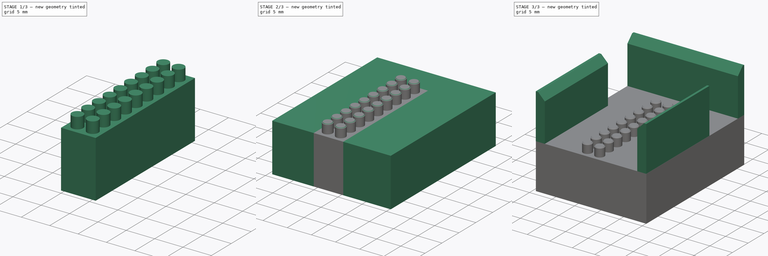
[diagram: build sequence overview — one tinted view per stage of 3, left to right]
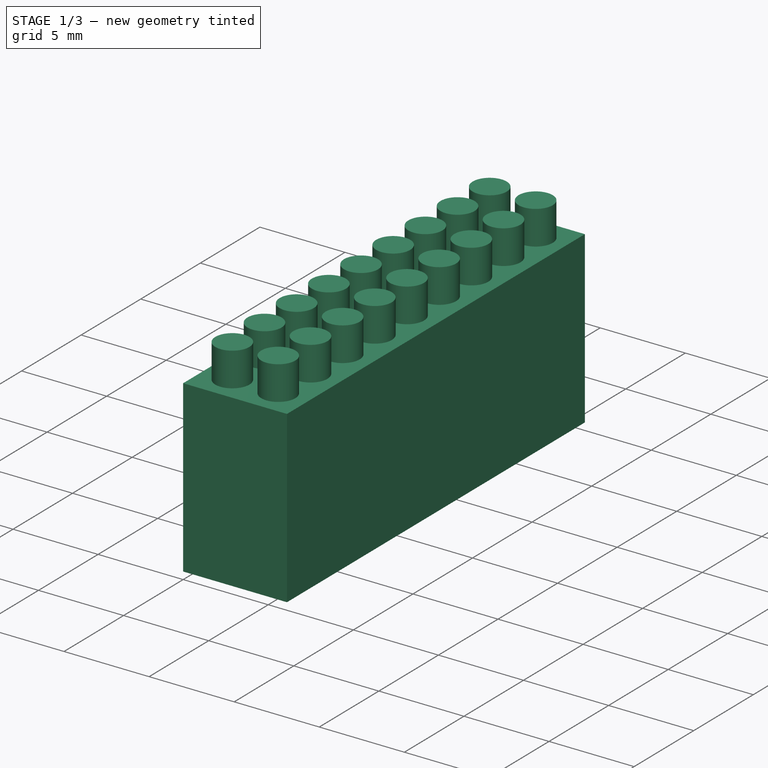
[diagram: stage 1 of 3 — iso view after this stage's code; geometry added in this stage tinted green]
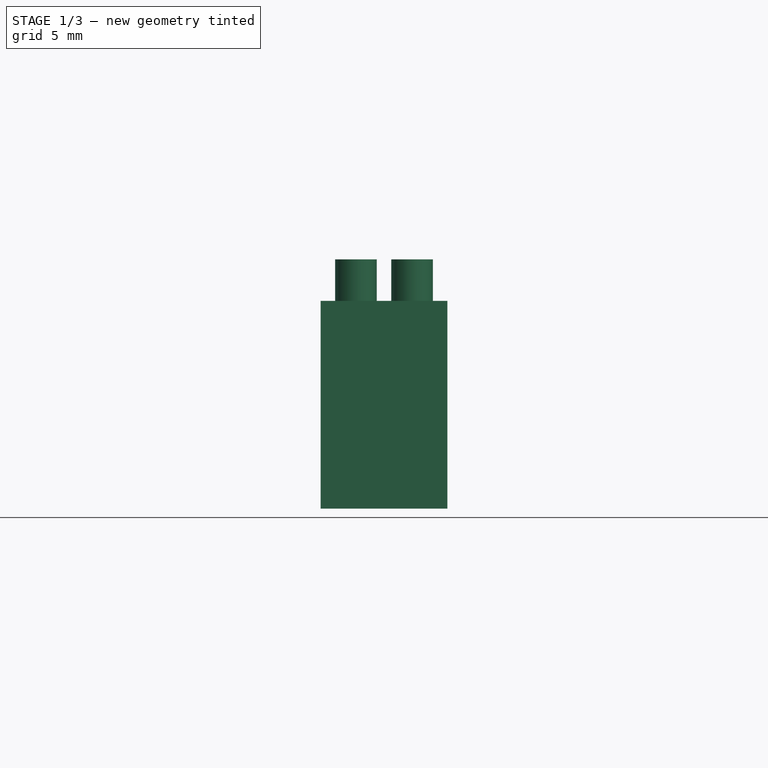
[diagram: stage 1 of 3 — front view after this stage's code; geometry added in this stage tinted green]
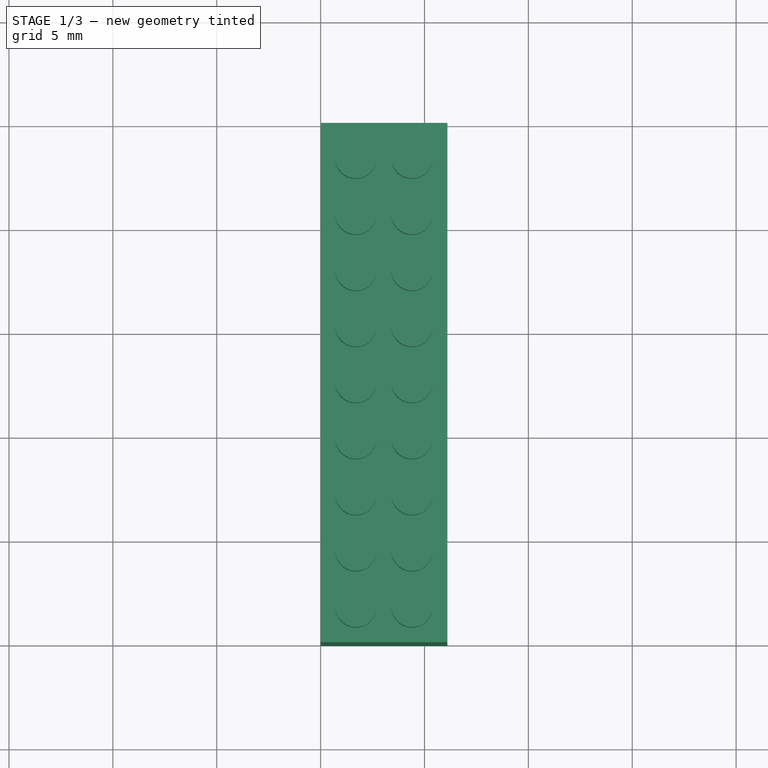
[diagram: stage 1 of 3 — top view after this stage's code; geometry added in this stage tinted green]
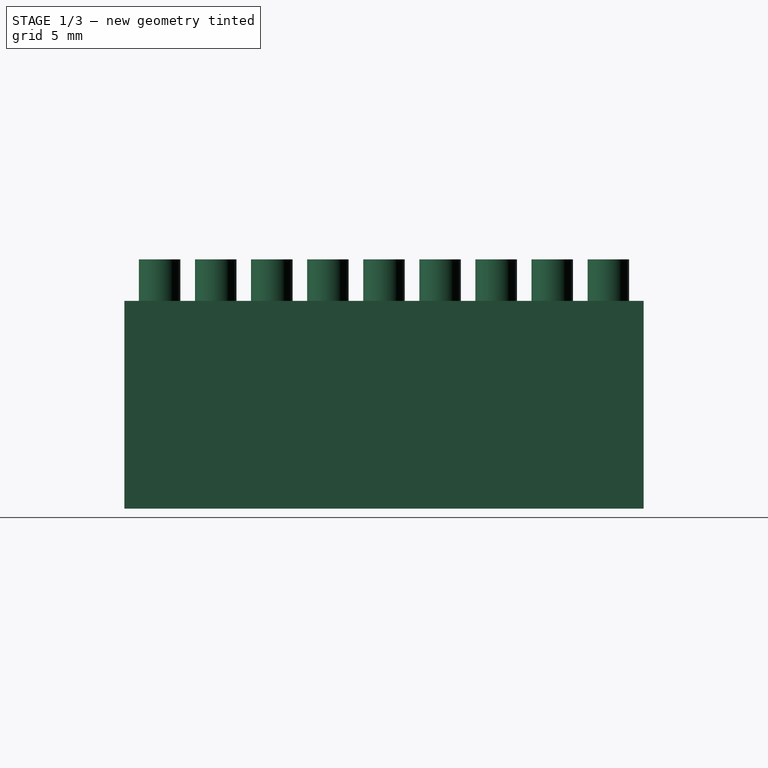
[diagram: stage 1 of 3 — right view after this stage's code; geometry added in this stage tinted green]
FCSTD DOCUMENT  (FreeCAD 0.18R16131 (Git))
Label: Stempel rote spots 2
License: All rights reserved
LicenseURL: http://en.wikipedia.org/wiki/All_rights_reserved
objects: Sketcher::SketchObject×4, PartDesign::Pad×4, PartDesign::Chamfer×2, PartDesign::Body×1
note: 15 computed .brp shape members not serialized (recipe doc carries the construction recipe); baked Part::Feature solids carry a one-line shape summary decoded from their .brp

FEATURE [Sketcher::SketchObject] Sketch
  MapMode = 5
  Support = -> [XY_Plane]
  sketch-geometry (4):
    g0: LineSegment StartX=6.1 StartY=25 StartZ=0 EndX=0 EndY=25 EndZ=0
    g1: LineSegment StartX=0 StartY=25 StartZ=0 EndX=0 EndY=0 EndZ=0
    g2: LineSegment StartX=0 StartY=0 StartZ=0 EndX=6.1 EndY=0 EndZ=0
    g3: LineSegment StartX=6.1 StartY=0 StartZ=0 EndX=6.1 EndY=25 EndZ=0
  constraints (11):
    c: Coincident(g0,g1)
    c: Coincident(g1,g2)
    c: Coincident(g2,g3)
    c: Coincident(g3,g0)
    c: Horizontal(g0)
    c: Horizontal(g2)
    c: Vertical(g1)
    c: Vertical(g3)
    c: Coincident(g1,g-1)
    c: Distance(g3) = 25
    c: Distance(g0) = 6.1
FEATURE [PartDesign::Pad] Pad
  Length = 10
  Length2 = 100
  Profile = -> Sketch
  Type = 0
FEATURE [Sketcher::SketchObject] Sketch001
  MapMode = 5
  Placement = pos=(0,0,10) rot=(0,0,1;0rad)
  Support = -> [Pad]
  sketch-geometry (18):
    g0: Circle CenterX=1.7 CenterY=23.3 CenterZ=0 NormalX=0 NormalY=0 NormalZ=1 AngleXU=0 Radius=1
    g1: Circle CenterX=1.7 CenterY=20.6 CenterZ=0 NormalX=0 NormalY=0 NormalZ=1 AngleXU=0 Radius=1
    g2: Circle CenterX=1.7 CenterY=17.9 CenterZ=0 NormalX=0 NormalY=0 NormalZ=1 AngleXU=0 Radius=1
    g3: Circle CenterX=1.7 CenterY=15.2 CenterZ=0 NormalX=0 NormalY=0 NormalZ=1 AngleXU=0 Radius=1
    g4: Circle CenterX=1.7 CenterY=12.5 CenterZ=0 NormalX=0 NormalY=0 NormalZ=1 AngleXU=0 Radius=1
    g5: Circle CenterX=1.7 CenterY=9.8 CenterZ=0 NormalX=0 NormalY=0 NormalZ=1 AngleXU=0 Radius=1
    g6: Circle CenterX=1.7 CenterY=7.1 CenterZ=0 NormalX=0 NormalY=0 NormalZ=1 AngleXU=0 Radius=1
    g7: Circle CenterX=1.7 CenterY=4.4 CenterZ=0 NormalX=0 NormalY=0 NormalZ=1 AngleXU=0 Radius=1
    g8: Circle CenterX=1.7 CenterY=1.7 CenterZ=0 NormalX=0 NormalY=0 NormalZ=1 AngleXU=0 Radius=1
    g9: Circle CenterX=4.4 CenterY=23.3 CenterZ=0 NormalX=0 NormalY=0 NormalZ=1 AngleXU=0 Radius=1
    g10: Circle CenterX=4.4 CenterY=20.6 CenterZ=0 NormalX=0 NormalY=0 NormalZ=1 AngleXU=0 Radius=1
    g11: Circle CenterX=4.4 CenterY=17.9 CenterZ=0 NormalX=0 NormalY=0 NormalZ=1 AngleXU=0 Radius=1
    g12: Circle CenterX=4.4 CenterY=15.2 CenterZ=0 NormalX=0 NormalY=0 NormalZ=1 AngleXU=0 Radius=1
    g13: Circle CenterX=4.4 CenterY=12.5 CenterZ=0 NormalX=0 NormalY=0 NormalZ=1 AngleXU=0 Radius=1
    g14: Circle CenterX=4.4 CenterY=9.8 CenterZ=0 NormalX=0 NormalY=0 NormalZ=1 AngleXU=0 Radius=1
    g15: Circle CenterX=4.4 CenterY=7.1 CenterZ=0 NormalX=0 NormalY=0 NormalZ=1 AngleXU=0 Radius=1
    g16: Circle CenterX=4.4 CenterY=4.4 CenterZ=0 NormalX=0 NormalY=0 NormalZ=1 AngleXU=0 Radius=1
    g17: Circle CenterX=4.4 CenterY=1.7 CenterZ=0 NormalX=0 NormalY=0 NormalZ=1 AngleXU=0 Radius=1
  constraints (54):
    c: Equal(g8,g7)
    c: Equal(g7,g6)
    c: Equal(g6,g5)
    c: Equal(g5,g4)
    c: Equal(g4,g3)
    c: Equal(g3,g2)
    c: Equal(g2,g1)
    c: Equal(g1,g0)
    c: Radius(g0) = 1
    c: Distance(g2,g1) = 2.7
    c: Distance(g0,g1) = 2.7
    c: Distance(g3,g2) = 2.7
    c: Distance(g3,g4) = 2.7
    c: Distance(g4,g5) = 2.7
    c: Distance(g5,g6) = 2.7
    c: Distance(g7,g6) = 2.7
    c: Distance(g8,g7) = 2.7
    c: DistanceY(g-1,g8) = 1.7
    c: DistanceX(g-2,g8) = 1.7
    c: DistanceX(g-2,g7) = 1.7
    c: DistanceX(g-2,g6) = 1.7
    c: DistanceX(g-2,g5) = 1.7
    c: DistanceX(g-2,g4) = 1.7
    c: DistanceX(g-2,g3) = 1.7
    c: DistanceX(g-2,g2) = 1.7
    c: DistanceX(g-2,g1) = 1.7
    c: DistanceX(g-2,g0) = 1.7
    c: Equal(g17,g16)
    c: Equal(g16,g15)
    c: Equal(g15,g14)
    c: Equal(g14,g13)
    c: Equal(g13,g12)
    c: Equal(g12,g11)
    c: Equal(g11,g10)
    c: Equal(g10,g9)
    c: Equal(g0,g9) = 1
    c: Distance(g11,g10) = 2.7
    c: Distance(g9,g10) = 2.7
    c: Distance(g12,g11) = 2.7
    c: Distance(g12,g13) = 2.7
    c: Distance(g13,g14) = 2.7
    c: Distance(g14,g15) = 2.7
    c: Distance(g16,g15) = 2.7
    c: Distance(g17,g16) = 2.7
    c: Distance(g17,g8) = 2.7
    c: Distance(g16,g7) = 2.7
    c: Distance(g15,g6) = 2.7
    c: Distance(g14,g5) = 2.7
    c: Distance(g13,g4) = 2.7
    c: Distance(g12,g3) = 2.7
    c: Distance(g11,g2) = 2.7
    c: Distance(g1,g10) = 2.7
    c: Distance(g9,g0) = 2.7
    c: DistanceY(g-1,g17) = 1.7
FEATURE [PartDesign::Pad] Pad001
  BaseFeature = -> Pad
  Length = 2
  Length2 = 100
  Profile = -> Sketch001
  Type = 0
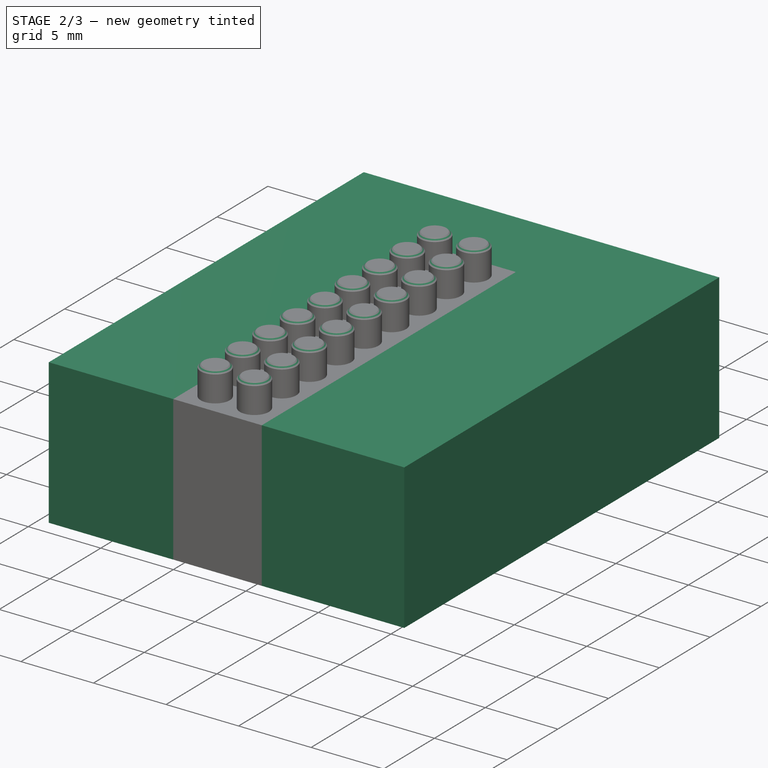
[diagram: stage 2 of 3 — iso view after this stage's code; geometry added in this stage tinted green]
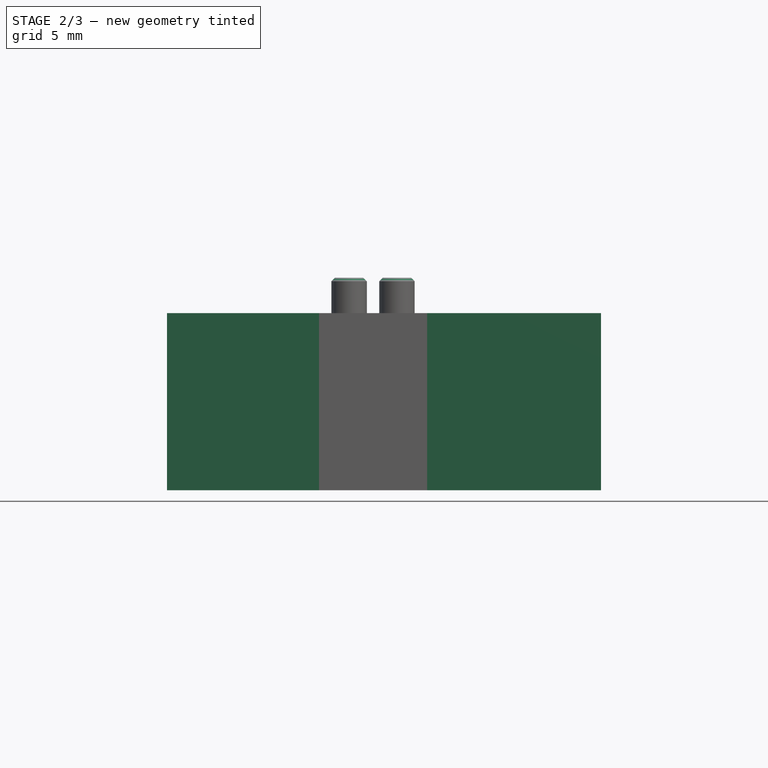
[diagram: stage 2 of 3 — front view after this stage's code; geometry added in this stage tinted green]
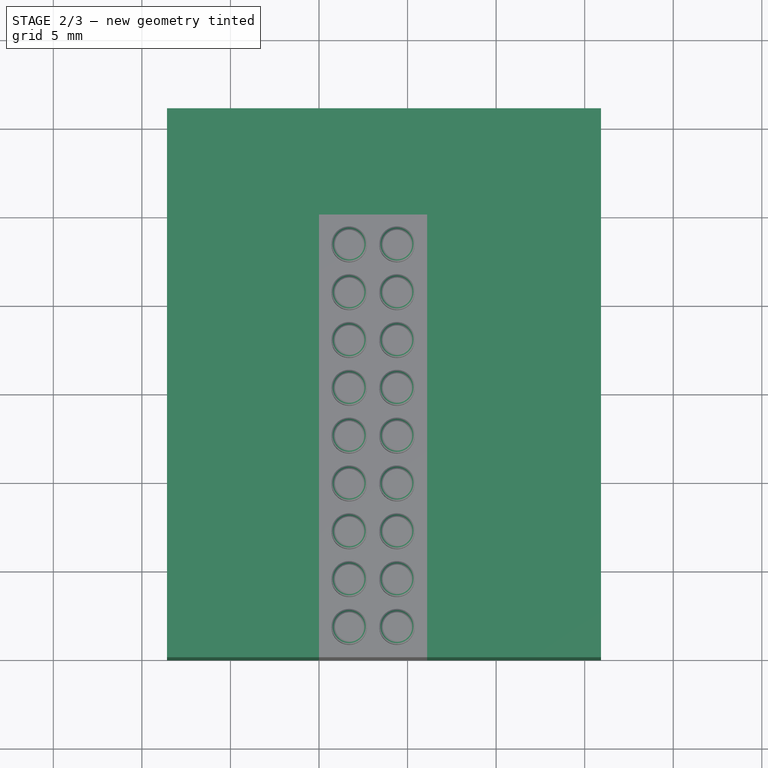
[diagram: stage 2 of 3 — top view after this stage's code; geometry added in this stage tinted green]
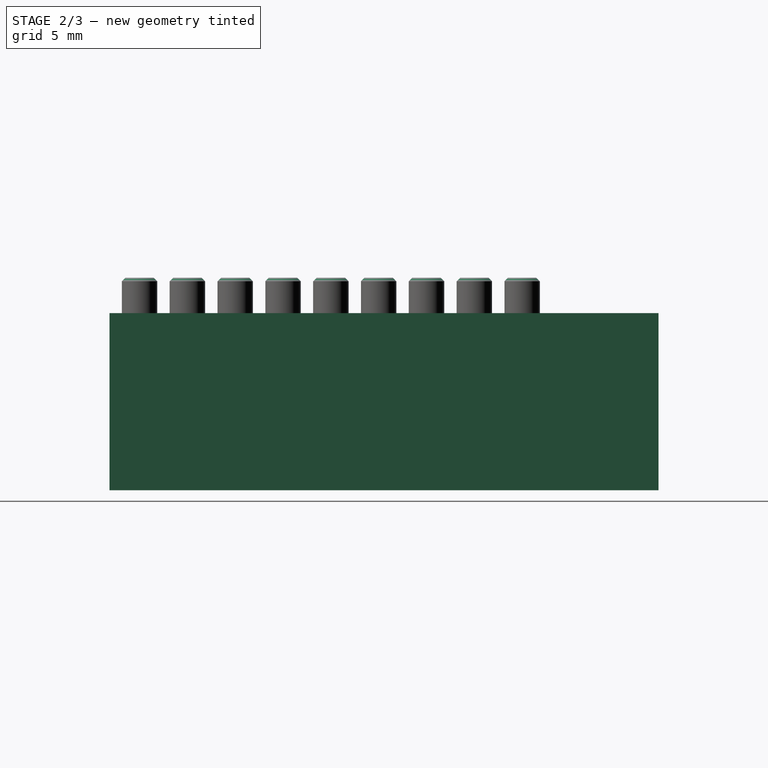
[diagram: stage 2 of 3 — right view after this stage's code; geometry added in this stage tinted green]
FEATURE [PartDesign::Chamfer] Chamfer
  Base = -> Pad001 [Face32,Face27,Face28,Face29,Face30,Face26,Face25,Face31,Face34,Face33,Face42,Face41,Face37,Face38,Face39,Face36,Face35,Face40]
  BaseFeature = -> Pad001
  Size = 0.2
FEATURE [Sketcher::SketchObject] Sketch002
  MapMode = 5
  Placement = pos=(0,0,10) rot=(0,0,1;0rad)
  Support = -> [Chamfer]
  sketch-geometry (8):
    g0: LineSegment StartX=0 StartY=25 StartZ=0 EndX=0 EndY=0 EndZ=0
    g1: LineSegment StartX=0 StartY=0 StartZ=0 EndX=-8.58146 EndY=0 EndZ=0
    g2: LineSegment StartX=-8.58146 StartY=0 StartZ=0 EndX=-8.58146 EndY=31 EndZ=0
    g3: LineSegment StartX=6.1 StartY=0 StartZ=0 EndX=15.9185 EndY=0 EndZ=0
    g4: LineSegment StartX=15.9185 StartY=0 StartZ=0 EndX=15.9185 EndY=31 EndZ=0
    g5: LineSegment StartX=6.1 StartY=25 StartZ=0 EndX=6.1 EndY=0 EndZ=0
    g6: LineSegment StartX=-8.58146 StartY=31 StartZ=0 EndX=15.9185 EndY=31 EndZ=0
    g7: LineSegment StartX=0 StartY=25 StartZ=0 EndX=6.1 EndY=25 EndZ=0
  constraints (22):
    c: Coincident(g0,g1)
    c: Coincident(g1,g2)
    c: Horizontal(g1)
    c: Vertical(g0)
    c: Vertical(g2)
    c: Coincident(g3,g4)
    c: Coincident(g5,g3)
    c: Horizontal(g3)
    c: Vertical(g4)
    c: Vertical(g5)
    c: Equal(g0,g5)
    c: Equal(g4,g2)
    c: Coincident(g6,g4)
    c: Coincident(g6,g2)
    c: Horizontal(g6)
    c: Coincident(g7,g5)
    c: Coincident(g7,g0)
    c: Distance(g7) = 6.1
    c: Distance(g0) = 25
    c: Coincident(g0,g-1)
    c: Distance(g6) = 24.5
    c: Distance(g4) = 31
FEATURE [PartDesign::Pad] Pad002
  BaseFeature = -> Chamfer
  Length = 10
  Length2 = 100
  Profile = -> Sketch002
  Reversed = true
  Type = 0
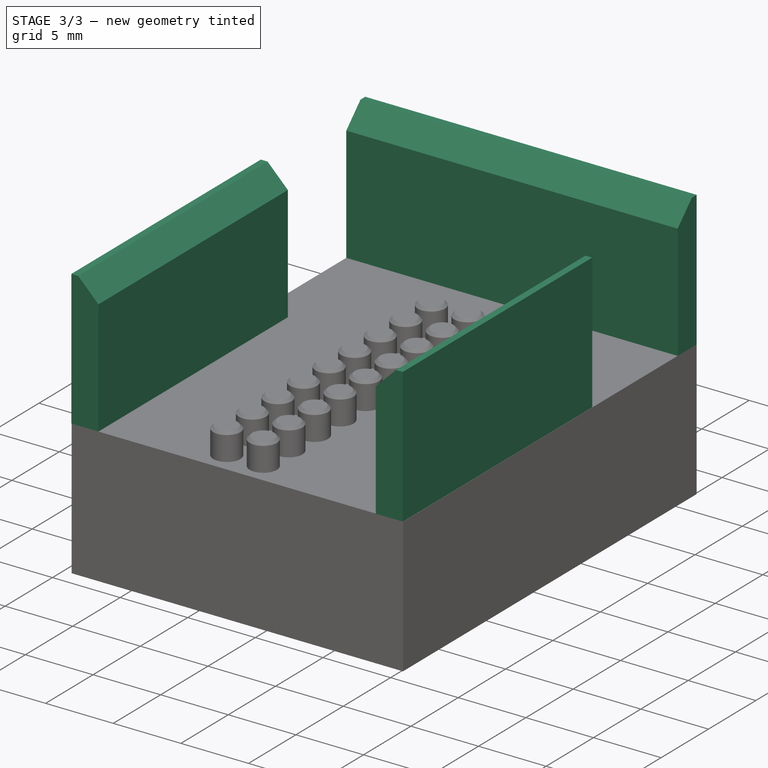
[diagram: stage 3 of 3 — iso view after this stage's code; geometry added in this stage tinted green]
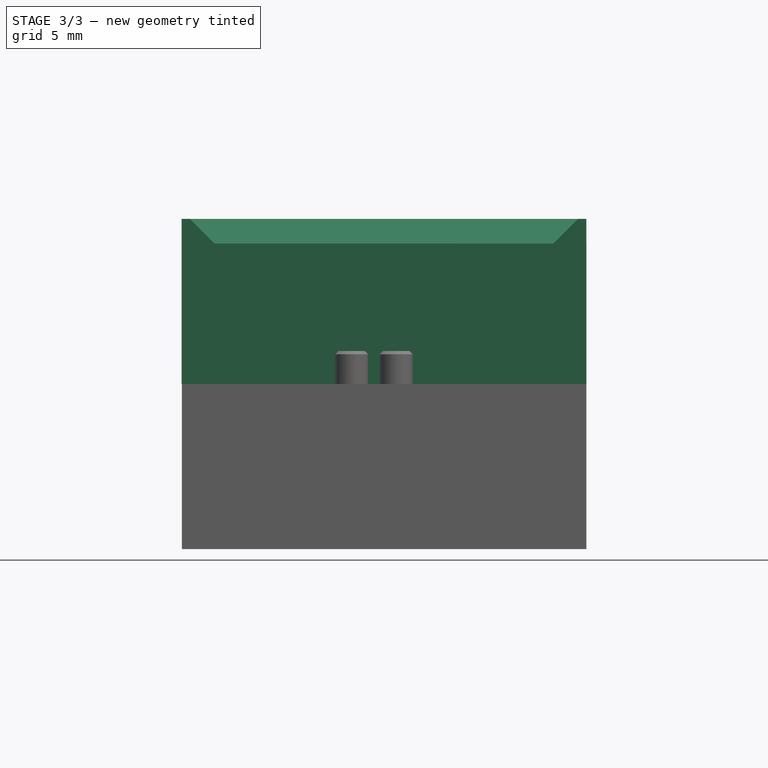
[diagram: stage 3 of 3 — front view after this stage's code; geometry added in this stage tinted green]
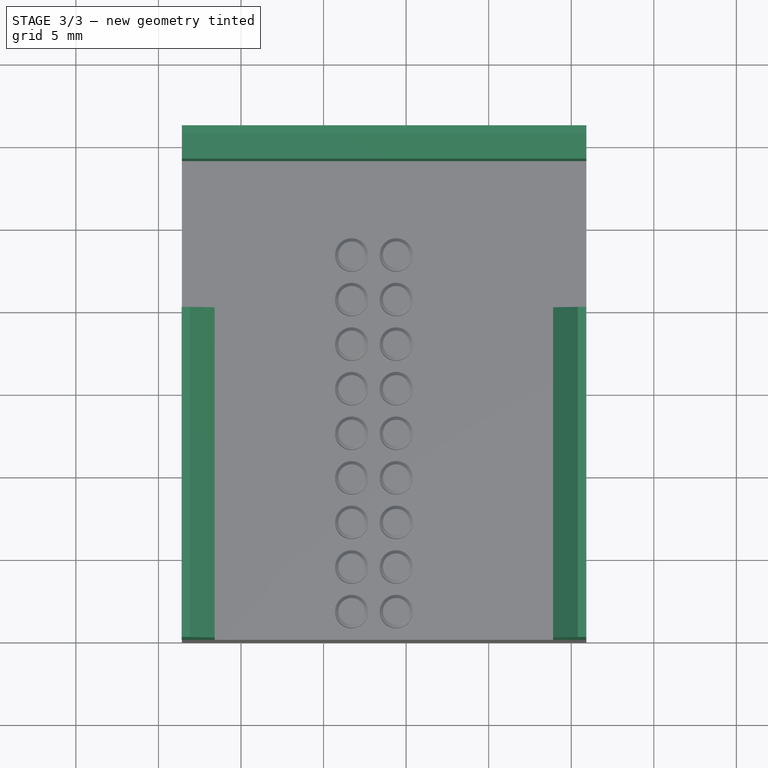
[diagram: stage 3 of 3 — top view after this stage's code; geometry added in this stage tinted green]
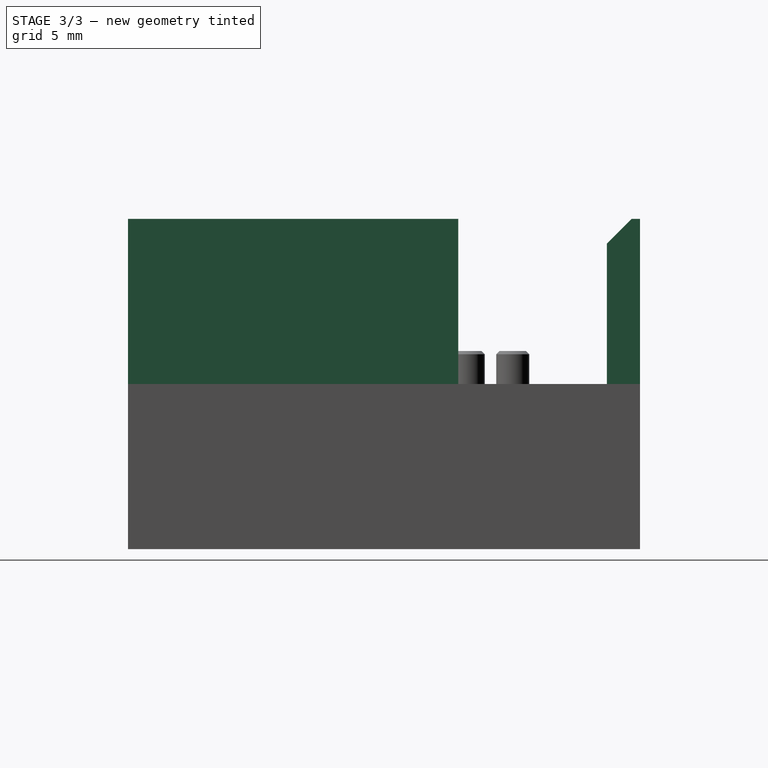
[diagram: stage 3 of 3 — right view after this stage's code; geometry added in this stage tinted green]
FEATURE [Sketcher::SketchObject] Sketch003
  MapMode = 5
  Placement = pos=(0,0,10) rot=(0,0,1;0rad)
  Support = -> [Pad002]
  sketch-geometry (12):
    g0: LineSegment StartX=-8.5977 StartY=20 StartZ=0 EndX=-6.5977 EndY=20 EndZ=0
    g1: LineSegment StartX=-6.5977 StartY=20 StartZ=0 EndX=-6.5977 EndY=0 EndZ=0
    g2: LineSegment StartX=-6.5977 StartY=0 StartZ=0 EndX=-8.5977 EndY=0 EndZ=0
    g3: LineSegment StartX=-8.5977 StartY=0 StartZ=0 EndX=-8.5977 EndY=20 EndZ=0
    g4: LineSegment StartX=-8.58 StartY=31 StartZ=0 EndX=15.92 EndY=31 EndZ=0
    g5: LineSegment StartX=15.92 StartY=31 StartZ=0 EndX=15.92 EndY=29 EndZ=0
    g6: LineSegment StartX=15.92 StartY=29 StartZ=0 EndX=-8.58 EndY=29 EndZ=0
    g7: LineSegment StartX=-8.58 StartY=29 StartZ=0 EndX=-8.58 EndY=31 EndZ=0
    g8: LineSegment StartX=13.9023 StartY=20 StartZ=0 EndX=15.9023 EndY=20 EndZ=0
    g9: LineSegment StartX=15.9023 StartY=20 StartZ=0 EndX=15.9023 EndY=0 EndZ=0
    g10: LineSegment StartX=15.9023 StartY=0 StartZ=0 EndX=13.9023 EndY=0 EndZ=0
    g11: LineSegment StartX=13.9023 StartY=0 StartZ=0 EndX=13.9023 EndY=20 EndZ=0
  constraints (35):
    c: Coincident(g0,g1)
    c: Coincident(g1,g2)
    c: Coincident(g2,g3)
    c: Coincident(g3,g0)
    c: Horizontal(g0)
    c: Horizontal(g2)
    c: Vertical(g1)
    c: Vertical(g3)
    c: Coincident(g4,g5)
    c: Coincident(g5,g6)
    c: Coincident(g6,g7)
    c: Coincident(g7,g4)
    c: Horizontal(g4)
    c: Horizontal(g6)
    c: Vertical(g5)
    c: Vertical(g7)
    c: Coincident(g8,g9)
    c: Coincident(g9,g10)
    c: Coincident(g10,g11)
    c: Coincident(g11,g8)
    c: Horizontal(g8)
    c: Horizontal(g10)
    c: Vertical(g9)
    c: Vertical(g11)
    c: Equal(g2,g7)
    c: Equal(g11,g1)
    c: Distance(g0) = 2
    c: Equal(g10,g2)
    c: Distance(g1,g11) = 20.5
    c: PointOnObject(g10,g-1)
    c: PointOnObject(g1,g-1)
    c: Distance(g3) = 20
    c: Distance(g4) = 24.5
    c: DistanceY(g-1,g6) = 29
    c: DistanceX(g-2,g4) = -8.58
FEATURE [PartDesign::Pad] Pad003
  BaseFeature = -> Pad002
  Length = 10
  Length2 = 100
  Profile = -> Sketch003
  Type = 0
FEATURE [PartDesign::Chamfer] Chamfer001
  Base = -> Pad003 [Edge82,Edge107,Edge93]
  BaseFeature = -> Pad003
  Size = 1.5
FEATURE [PartDesign::Body] Body
  Group = -> [Sketch,Pad,Sketch001,Pad001,Chamfer,Sketch002,Pad002,Sketch003,Pad003,Chamfer001]
  Origin = -> Origin
  Tip = -> Chamfer001
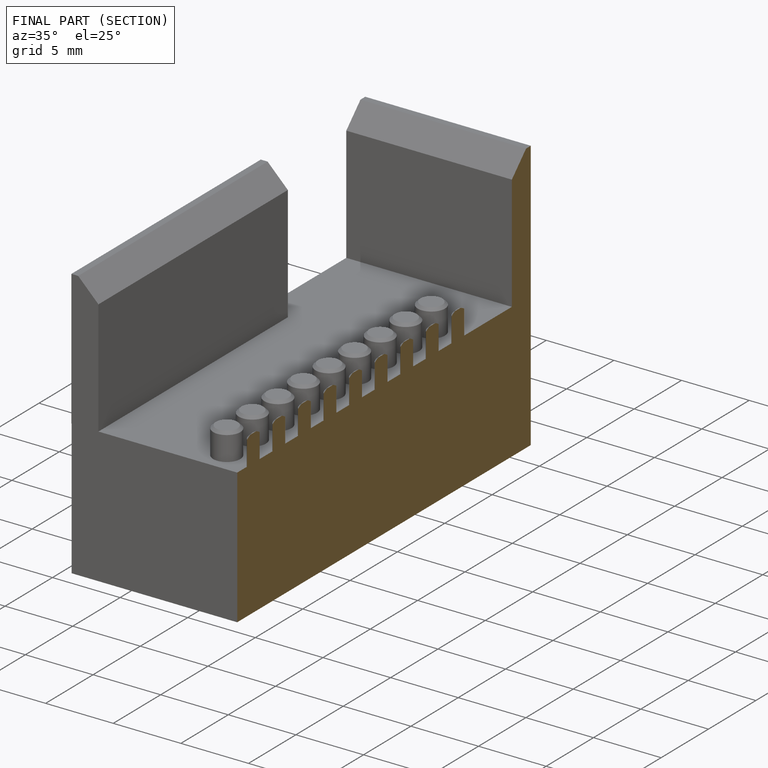
[diagram: finished part — half-section view (interior)]
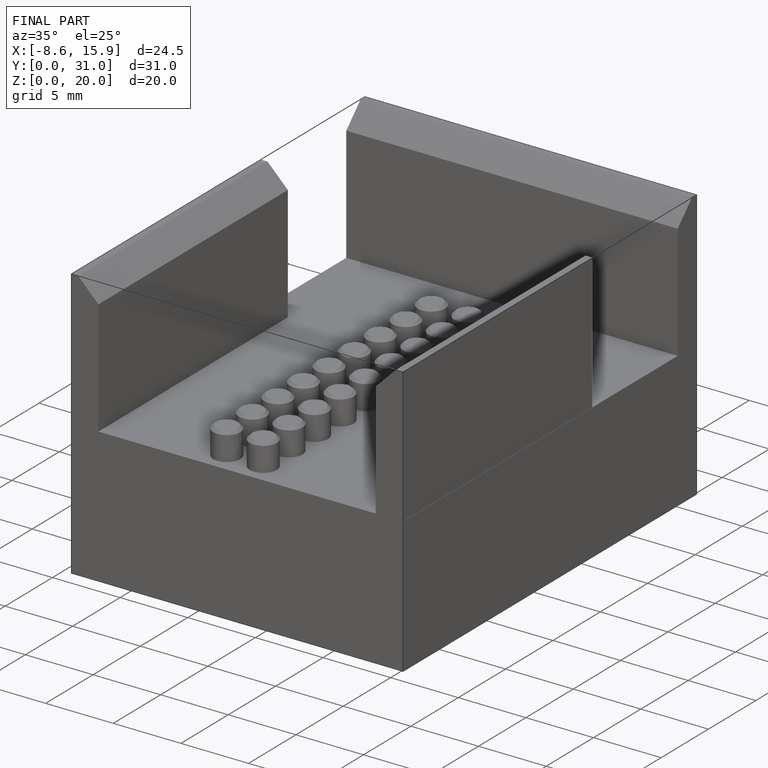
[diagram: finished part — iso view with bounding-box wireframe]
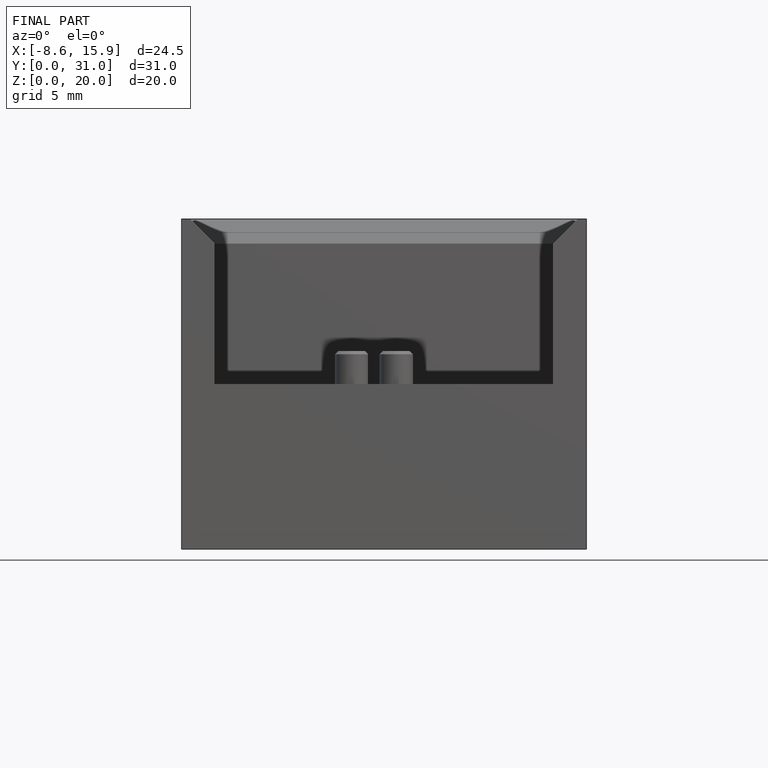
[diagram: finished part — front view with bounding-box wireframe]
